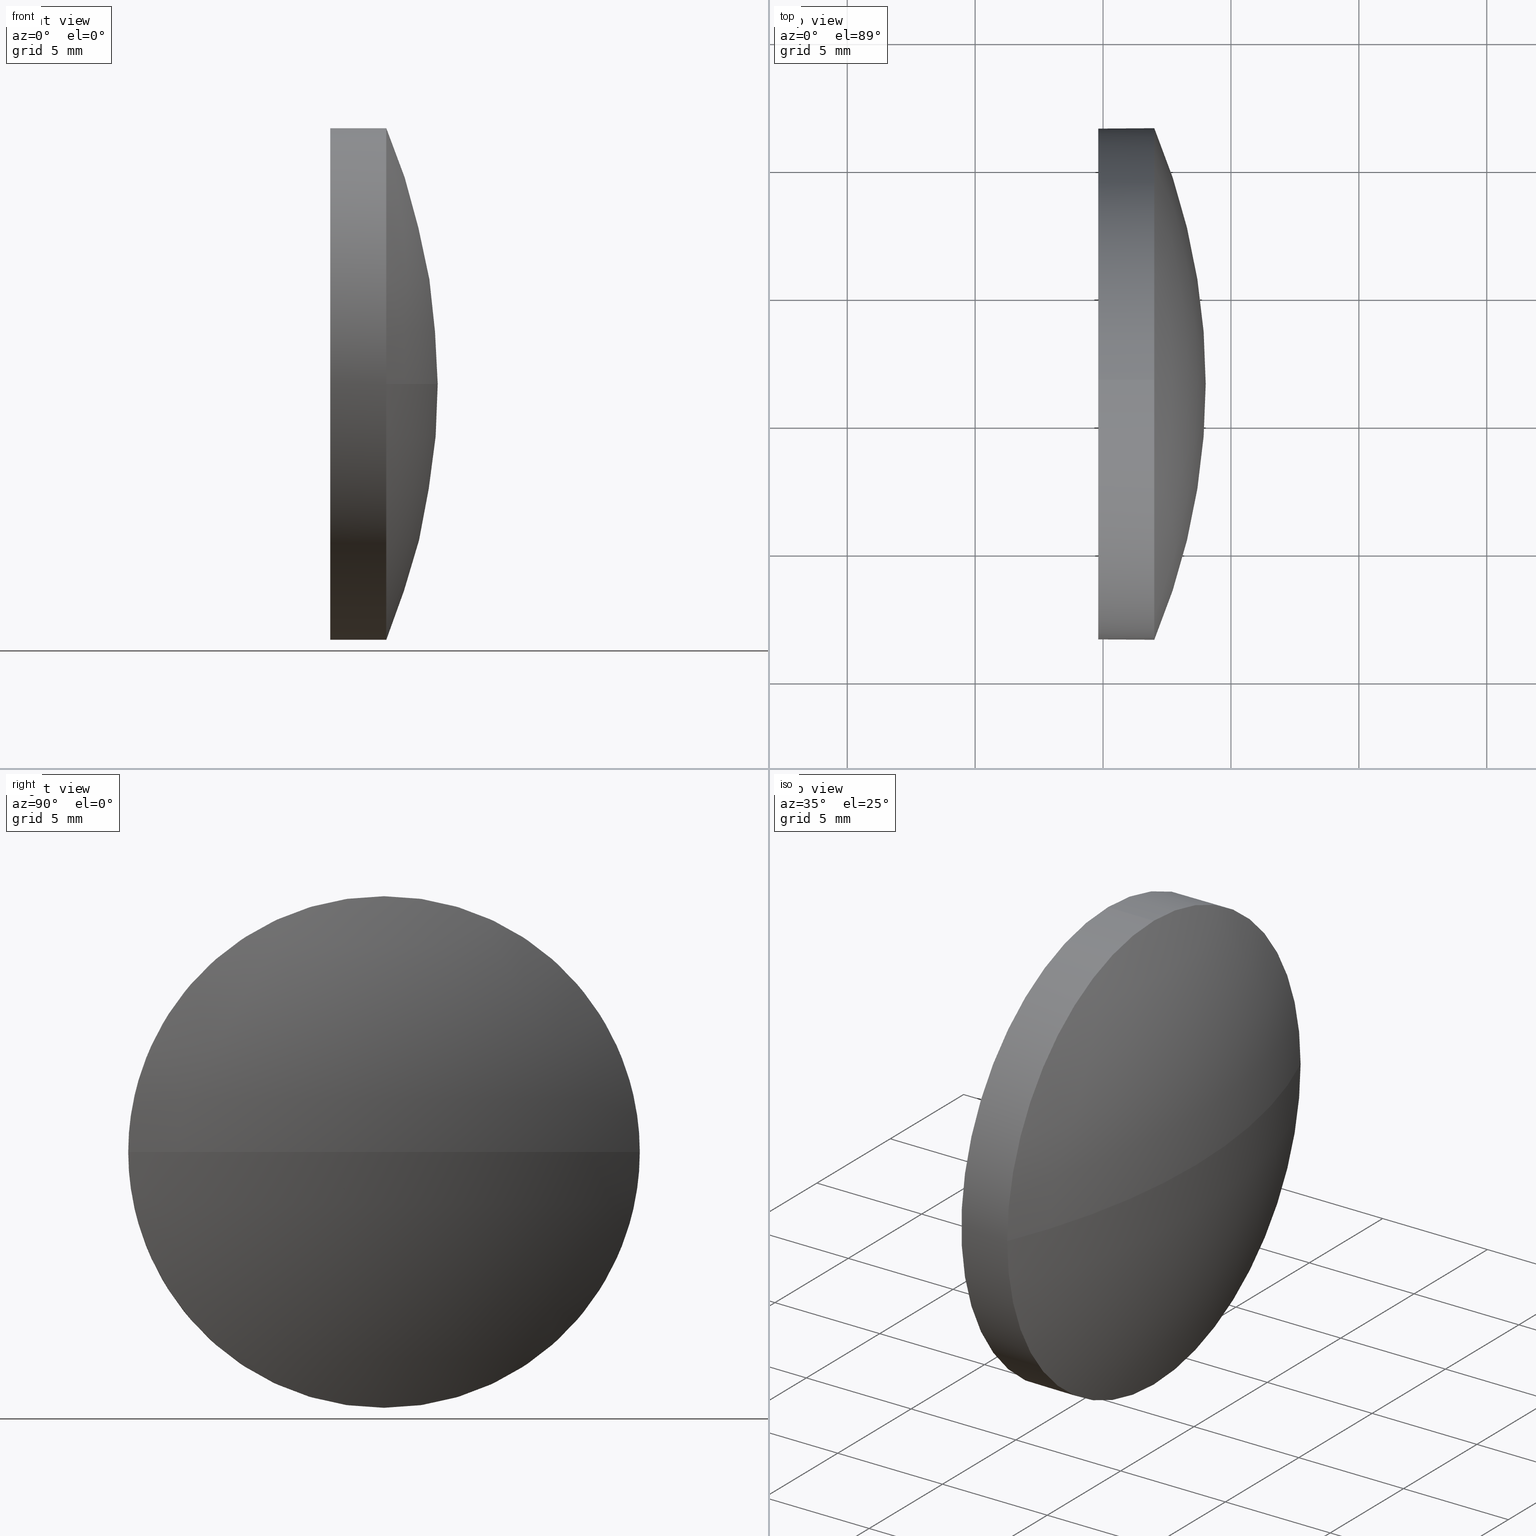
[diagram: canonical four-view strip — front | top / right | iso, engineering-drawing reading convention]
A machine part, canonical four-view strip (front | top / right | iso — engineering-drawing reading convention). The complete STEP part file that produces these views, byte-faithful:
ISO-10303-21;
HEADER;
FILE_DESCRIPTION (( 'STEP AP214' ),
    '1' );
FILE_NAME ('100207.STEP',
    '2019-05-23T06:49:25',
    ( '' ),
    ( '' ),
    'SwSTEP 2.0',
    'SolidWorks 2016',
    '' );
FILE_SCHEMA (( 'AUTOMOTIVE_DESIGN' ));
ENDSEC;

DATA;
#1 = ORIENTED_EDGE ( 'NONE', *, *, #111, .T. ) ;
#2 = CYLINDRICAL_SURFACE ( 'NONE', #41, 9.999999999999998200 ) ;
#3 = AXIS2_PLACEMENT_3D ( 'NONE', #147, #178, #42 ) ;
#4 =( NAMED_UNIT ( * ) PLANE_ANGLE_UNIT ( ) SI_UNIT ( $, .RADIAN. ) );
#5 = EDGE_LOOP ( 'NONE', ( #13, #70, #167, #129 ) ) ;
#6 = PLANE ( 'NONE',  #109 ) ;
#7 = CARTESIAN_POINT ( 'NONE',  ( 396.6972880556904800, 21.54680395939442400, -9.999999999999998200 ) ) ;
#8 = CARTESIAN_POINT ( 'NONE',  ( 407.0037183694385000, 21.54680395939442400, 0.0000000000000000000 ) ) ;
#9 = CARTESIAN_POINT ( 'NONE',  ( 383.1330964788912200, 21.54680395939439600, 0.0000000000000000000 ) ) ;
#10 = SURFACE_STYLE_USAGE ( .BOTH. , #79 ) ;
#11 = AXIS2_PLACEMENT_3D ( 'NONE', #33, #151, #131 ) ;
#12 = COLOUR_RGB ( '',1.000000000000000000, 1.000000000000000000, 1.000000000000000000 ) ;
#13 = ORIENTED_EDGE ( 'NONE', *, *, #148, .F. ) ;
#14 = DIRECTION ( 'NONE',  ( 1.000000000000000000, 0.0000000000000000000, 0.0000000000000000000 ) ) ;
#15 = ORIENTED_EDGE ( 'NONE', *, *, #169, .T. ) ;
#16 = ORIENTED_EDGE ( 'NONE', *, *, #158, .F. ) ;
#17 = CARTESIAN_POINT ( 'NONE',  ( 404.8137183694385000, 21.54680395939442400, 0.0000000000000000000 ) ) ;
#18 = DIRECTION ( 'NONE',  ( -1.000000000000000000, -0.0000000000000000000, -0.0000000000000000000 ) ) ;
#19 = PRODUCT ( '100207', '100207', '', ( #48 ) ) ;
#20 = CARTESIAN_POINT ( 'NONE',  ( 396.6972880556904800, 21.54680395939442400, 9.999999999999998200 ) ) ;
#21 = DIRECTION ( 'NONE',  ( -0.0000000000000000000, 0.0000000000000000000, 1.000000000000000000 ) ) ;
#22 = CARTESIAN_POINT ( 'NONE',  ( 407.0037183694385000, 21.54680395939442400, 9.999999999999998200 ) ) ;
#23 = DIRECTION ( 'NONE',  ( 0.0000000000000000000, 0.0000000000000000000, 1.000000000000000000 ) ) ;
#24 =( NAMED_UNIT ( * ) PLANE_ANGLE_UNIT ( ) SI_UNIT ( $, .RADIAN. ) );
#25 = CYLINDRICAL_SURFACE ( 'NONE', #49, 9.999999999999998200 ) ;
#26 = EDGE_LOOP ( 'NONE', ( #173, #153 ) ) ;
#27 = FACE_OUTER_BOUND ( 'NONE', #43, .T. ) ;
#28 = CIRCLE ( 'NONE', #69, 9.999999999999998200 ) ;
#29 =( GEOMETRIC_REPRESENTATION_CONTEXT ( 3 ) GLOBAL_UNCERTAINTY_ASSIGNED_CONTEXT ( ( #128 ) ) GLOBAL_UNIT_ASSIGNED_CONTEXT ( ( #96, #133, #166 ) ) REPRESENTATION_CONTEXT ( 'NONE', 'WORKASPACE' ) );
#30 = CARTESIAN_POINT ( 'NONE',  ( 409.0137183694384900, 21.54680395939439600, 0.0000000000000000000 ) ) ;
#31 = LINE ( 'NONE', #7, #68 ) ;
#32 = CARTESIAN_POINT ( 'NONE',  ( 0.0000000000000000000, 0.0000000000000000000, 0.0000000000000000000 ) ) ;
#33 = CARTESIAN_POINT ( 'NONE',  ( 383.1330964788912200, 21.54680395939439600, 0.0000000000000000000 ) ) ;
#34 = CIRCLE ( 'NONE', #57, 9.999999999999998200 ) ;
#35 = FILL_AREA_STYLE ('',( #184 ) ) ;
#36 = SPHERICAL_SURFACE ( 'NONE', #97, 25.88062189054729600 ) ;
#37 = ADVANCED_BREP_SHAPE_REPRESENTATION ( '100207', ( #58, #107 ), #150 ) ;
#38 = ADVANCED_FACE ( 'NONE', ( #112 ), #6, .F. ) ;
#39 = SURFACE_STYLE_USAGE ( .BOTH. , #100 ) ;
#40 = DIRECTION ( 'NONE',  ( 0.0000000000000000000, 0.0000000000000000000, -1.000000000000000000 ) ) ;
#41 = AXIS2_PLACEMENT_3D ( 'NONE', #76, #103, #95 ) ;
#42 = DIRECTION ( 'NONE',  ( 0.0000000000000000000, 0.0000000000000000000, 1.000000000000000000 ) ) ;
#43 = EDGE_LOOP ( 'NONE', ( #15, #1, #115, #16, #83 ) ) ;
#44 = DIRECTION ( 'NONE',  ( -1.000000000000000000, -0.0000000000000000000, -0.0000000000000000000 ) ) ;
#45 = DIRECTION ( 'NONE',  ( 0.0000000000000000000, 0.0000000000000000000, 1.000000000000000000 ) ) ;
#46 = VERTEX_POINT ( 'NONE', #30 ) ;
#47 = DIRECTION ( 'NONE',  ( -1.000000000000000000, -0.0000000000000000000, -0.0000000000000000000 ) ) ;
#48 = PRODUCT_CONTEXT ( 'NONE', #63, 'mechanical' ) ;
#49 = AXIS2_PLACEMENT_3D ( 'NONE', #159, #18, #45 ) ;
#50 = CARTESIAN_POINT ( 'NONE',  ( 407.0037183694385000, 21.54680395939442400, 0.0000000000000000000 ) ) ;
#51 = ORIENTED_EDGE ( 'NONE', *, *, #111, .F. ) ;
#52 = AXIS2_PLACEMENT_3D ( 'NONE', #9, #21, #92 ) ;
#53 = VERTEX_POINT ( 'NONE', #55 ) ;
#54 = ORIENTED_EDGE ( 'NONE', *, *, #148, .T. ) ;
#55 = CARTESIAN_POINT ( 'NONE',  ( 407.0037183694385000, 11.54680395939439600, -1.224646799147353700E-015 ) ) ;
#56 = CIRCLE ( 'NONE', #3, 9.999999999999998200 ) ;
#57 = AXIS2_PLACEMENT_3D ( 'NONE', #77, #44, #78 ) ;
#58 = MANIFOLD_SOLID_BREP ( '��ת1', #81 ) ;
#59 = FACE_OUTER_BOUND ( 'NONE', #168, .T. ) ;
#60 = ORIENTED_EDGE ( 'NONE', *, *, #71, .F. ) ;
#61 = DIRECTION ( 'NONE',  ( -1.000000000000000000, -0.0000000000000000000, -0.0000000000000000000 ) ) ;
#62 = CARTESIAN_POINT ( 'NONE',  ( 407.0037183694385000, 21.54680395939442400, 0.0000000000000000000 ) ) ;
#63 = APPLICATION_CONTEXT ( 'automotive_design' ) ;
#64 = CIRCLE ( 'NONE', #52, 25.88062189054729600 ) ;
#65 = DIRECTION ( 'NONE',  ( -1.000000000000000000, -0.0000000000000000000, -0.0000000000000000000 ) ) ;
#66 = VERTEX_POINT ( 'NONE', #124 ) ;
#67 = AXIS2_PLACEMENT_3D ( 'NONE', #50, #65, #165 ) ;
#68 = VECTOR ( 'NONE', #61, 1000.000000000000000 ) ;
#69 = AXIS2_PLACEMENT_3D ( 'NONE', #8, #183, #162 ) ;
#70 = ORIENTED_EDGE ( 'NONE', *, *, #155, .T. ) ;
#71 = EDGE_CURVE ( 'NONE', #82, #123, #56, .T. ) ;
#72 = AXIS2_PLACEMENT_3D ( 'NONE', #104, #132, #90 ) ;
#73 = CARTESIAN_POINT ( 'NONE',  ( 404.8137183694385000, 21.54680395939442400, -9.999999999999998200 ) ) ;
#74 = CIRCLE ( 'NONE', #86, 9.999999999999998200 ) ;
#75 = UNCERTAINTY_MEASURE_WITH_UNIT (LENGTH_MEASURE( 1.000000000000000100E-005 ), #127, 'distance_accuracy_value', 'NONE');
#76 = CARTESIAN_POINT ( 'NONE',  ( 396.6972880556904800, 21.54680395939442400, 0.0000000000000000000 ) ) ;
#77 = CARTESIAN_POINT ( 'NONE',  ( 407.0037183694385000, 21.54680395939442400, 0.0000000000000000000 ) ) ;
#78 = DIRECTION ( 'NONE',  ( 0.0000000000000000000, 0.0000000000000000000, 1.000000000000000000 ) ) ;
#79 = SURFACE_SIDE_STYLE ('',( #181 ) ) ;
#80 = DIRECTION ( 'NONE',  ( 0.0000000000000000000, 1.000000000000000000, 0.0000000000000000000 ) ) ;
#81 = CLOSED_SHELL ( 'NONE', ( #99, #110, #174, #143, #38 ) ) ;
#82 = VERTEX_POINT ( 'NONE', #73 ) ;
#83 = ORIENTED_EDGE ( 'NONE', *, *, #126, .T. ) ;
#84 = PRODUCT_DEFINITION_SHAPE ( 'NONE', 'NONE',  #113 ) ;
#85 = SHAPE_DEFINITION_REPRESENTATION ( #84, #37 ) ;
#86 = AXIS2_PLACEMENT_3D ( 'NONE', #62, #47, #152 ) ;
#87 = STYLED_ITEM ( 'NONE', ( #139 ), #58 ) ;
#88 = EDGE_LOOP ( 'NONE', ( #108, #54, #89, #161 ) ) ;
#89 = ORIENTED_EDGE ( 'NONE', *, *, #126, .F. ) ;
#90 = DIRECTION ( 'NONE',  ( 0.0000000000000000000, 1.000000000000000000, 0.0000000000000000000 ) ) ;
#91 = AXIS2_PLACEMENT_3D ( 'NONE', #17, #114, #130 ) ;
#92 = DIRECTION ( 'NONE',  ( 1.000000000000000000, 0.0000000000000000000, 0.0000000000000000000 ) ) ;
#93 = PRESENTATION_STYLE_ASSIGNMENT (( #10 ) ) ;
#94 = DIRECTION ( 'NONE',  ( 1.000000000000000000, 0.0000000000000000000, 0.0000000000000000000 ) ) ;
#95 = DIRECTION ( 'NONE',  ( 0.0000000000000000000, 0.0000000000000000000, 1.000000000000000000 ) ) ;
#96 =( LENGTH_UNIT ( ) NAMED_UNIT ( * ) SI_UNIT ( .MILLI., .METRE. ) );
#97 = AXIS2_PLACEMENT_3D ( 'NONE', #163, #106, #80 ) ;
#98 = VERTEX_POINT ( 'NONE', #22 ) ;
#99 = ADVANCED_FACE ( 'NONE', ( #27 ), #25, .T. ) ;
#100 = SURFACE_SIDE_STYLE ('',( #176 ) ) ;
#101 = VECTOR ( 'NONE', #116, 1000.000000000000000 ) ;
#102 = CARTESIAN_POINT ( 'NONE',  ( 404.8137183694385000, 21.54680395939442400, 0.0000000000000000000 ) ) ;
#103 = DIRECTION ( 'NONE',  ( -1.000000000000000000, -0.0000000000000000000, -0.0000000000000000000 ) ) ;
#104 = CARTESIAN_POINT ( 'NONE',  ( 383.1330964788912200, 21.54680395939439600, 0.0000000000000000000 ) ) ;
#105 = FACE_OUTER_BOUND ( 'NONE', #5, .T. ) ;
#106 = DIRECTION ( 'NONE',  ( -0.0000000000000000000, 0.0000000000000000000, -1.000000000000000000 ) ) ;
#107 = AXIS2_PLACEMENT_3D ( 'NONE', #32, #23, #94 ) ;
#108 = ORIENTED_EDGE ( 'NONE', *, *, #155, .F. ) ;
#109 = AXIS2_PLACEMENT_3D ( 'NONE', #102, #14, #40 ) ;
#110 = ADVANCED_FACE ( 'NONE', ( #105 ), #144, .T. ) ;
#111 = EDGE_CURVE ( 'NONE', #142, #82, #31, .T. ) ;
#112 = FACE_OUTER_BOUND ( 'NONE', #26, .T. ) ;
#113 = PRODUCT_DEFINITION ( 'δ֪', '', #121, #171 ) ;
#114 = DIRECTION ( 'NONE',  ( -1.000000000000000000, -0.0000000000000000000, -0.0000000000000000000 ) ) ;
#115 = ORIENTED_EDGE ( 'NONE', *, *, #141, .F. ) ;
#116 = DIRECTION ( 'NONE',  ( -1.000000000000000000, -0.0000000000000000000, -0.0000000000000000000 ) ) ;
#117 =( NAMED_UNIT ( * ) SI_UNIT ( $, .STERADIAN. ) SOLID_ANGLE_UNIT ( ) );
#118 = APPLICATION_PROTOCOL_DEFINITION ( 'draft international standard', 'automotive_design', 1998, #135 ) ;
#119 = MECHANICAL_DESIGN_GEOMETRIC_PRESENTATION_REPRESENTATION (  '', ( #138 ), #29 ) ;
#120 = ORIENTED_EDGE ( 'NONE', *, *, #122, .T. ) ;
#121 = PRODUCT_DEFINITION_FORMATION_WITH_SPECIFIED_SOURCE ( '�κ�', '', #19, .NOT_KNOWN. ) ;
#122 = EDGE_CURVE ( 'NONE', #142, #53, #34, .T. ) ;
#123 = VERTEX_POINT ( 'NONE', #180 ) ;
#124 = CARTESIAN_POINT ( 'NONE',  ( 407.0037183694385000, 31.54680395939442400, 0.0000000000000000000 ) ) ;
#125 = FILL_AREA_STYLE ('',( #175 ) ) ;
#126 = EDGE_CURVE ( 'NONE', #98, #66, #28, .T. ) ;
#127 =( LENGTH_UNIT ( ) NAMED_UNIT ( * ) SI_UNIT ( .MILLI., .METRE. ) );
#128 = UNCERTAINTY_MEASURE_WITH_UNIT (LENGTH_MEASURE( 1.000000000000000100E-005 ), #96, 'distance_accuracy_value', 'NONE');
#129 = ORIENTED_EDGE ( 'NONE', *, *, #169, .F. ) ;
#130 = DIRECTION ( 'NONE',  ( 0.0000000000000000000, 0.0000000000000000000, 1.000000000000000000 ) ) ;
#131 = DIRECTION ( 'NONE',  ( 0.0000000000000000000, 1.000000000000000000, 1.224646799147353000E-016 ) ) ;
#132 = DIRECTION ( 'NONE',  ( -0.0000000000000000000, 0.0000000000000000000, -1.000000000000000000 ) ) ;
#133 =( NAMED_UNIT ( * ) PLANE_ANGLE_UNIT ( ) SI_UNIT ( $, .RADIAN. ) );
#134 = CIRCLE ( 'NONE', #67, 9.999999999999998200 ) ;
#135 = APPLICATION_CONTEXT ( 'automotive_design' ) ;
#136 = ORIENTED_EDGE ( 'NONE', *, *, #172, .T. ) ;
#137 = PRESENTATION_LAYER_ASSIGNMENT (  '', '', ( #87 ) ) ;
#138 = STYLED_ITEM ( 'NONE', ( #93 ), #37 ) ;
#139 = PRESENTATION_STYLE_ASSIGNMENT (( #39 ) ) ;
#140 = CIRCLE ( 'NONE', #91, 9.999999999999998200 ) ;
#141 = EDGE_CURVE ( 'NONE', #123, #82, #140, .T. ) ;
#142 = VERTEX_POINT ( 'NONE', #149 ) ;
#143 = ADVANCED_FACE ( 'NONE', ( #59 ), #2, .T. ) ;
#144 = SPHERICAL_SURFACE ( 'NONE', #72, 25.88062189054729600 ) ;
#145 = PRODUCT_RELATED_PRODUCT_CATEGORY ( 'part', '', ( #19 ) ) ;
#146 = FACE_OUTER_BOUND ( 'NONE', #88, .T. ) ;
#147 = CARTESIAN_POINT ( 'NONE',  ( 404.8137183694385000, 21.54680395939442400, 0.0000000000000000000 ) ) ;
#148 = EDGE_CURVE ( 'NONE', #46, #66, #64, .T. ) ;
#149 = CARTESIAN_POINT ( 'NONE',  ( 407.0037183694385000, 21.54680395939442400, -9.999999999999998200 ) ) ;
#150 =( GEOMETRIC_REPRESENTATION_CONTEXT ( 3 ) GLOBAL_UNCERTAINTY_ASSIGNED_CONTEXT ( ( #186 ) ) GLOBAL_UNIT_ASSIGNED_CONTEXT ( ( #154, #24, #117 ) ) REPRESENTATION_CONTEXT ( 'NONE', 'WORKASPACE' ) );
#151 = DIRECTION ( 'NONE',  ( 0.0000000000000000000, 1.224646799147353200E-016, -1.000000000000000000 ) ) ;
#152 = DIRECTION ( 'NONE',  ( 0.0000000000000000000, 0.0000000000000000000, 1.000000000000000000 ) ) ;
#153 = ORIENTED_EDGE ( 'NONE', *, *, #71, .T. ) ;
#154 =( LENGTH_UNIT ( ) NAMED_UNIT ( * ) SI_UNIT ( .MILLI., .METRE. ) );
#155 = EDGE_CURVE ( 'NONE', #46, #53, #177, .T. ) ;
#156 = MECHANICAL_DESIGN_GEOMETRIC_PRESENTATION_REPRESENTATION (  '', ( #87 ), #179 ) ;
#157 = PRESENTATION_LAYER_ASSIGNMENT (  '', '', ( #138 ) ) ;
#158 = EDGE_CURVE ( 'NONE', #98, #123, #185, .T. ) ;
#159 = CARTESIAN_POINT ( 'NONE',  ( 396.6972880556904800, 21.54680395939442400, 0.0000000000000000000 ) ) ;
#160 = ORIENTED_EDGE ( 'NONE', *, *, #158, .T. ) ;
#161 = ORIENTED_EDGE ( 'NONE', *, *, #172, .F. ) ;
#162 = DIRECTION ( 'NONE',  ( 0.0000000000000000000, 0.0000000000000000000, 1.000000000000000000 ) ) ;
#163 = CARTESIAN_POINT ( 'NONE',  ( 383.1330964788912200, 21.54680395939439600, 0.0000000000000000000 ) ) ;
#164 = APPLICATION_PROTOCOL_DEFINITION ( 'draft international standard', 'automotive_design', 1998, #63 ) ;
#165 = DIRECTION ( 'NONE',  ( 0.0000000000000000000, 0.0000000000000000000, 1.000000000000000000 ) ) ;
#166 =( NAMED_UNIT ( * ) SI_UNIT ( $, .STERADIAN. ) SOLID_ANGLE_UNIT ( ) );
#167 = ORIENTED_EDGE ( 'NONE', *, *, #122, .F. ) ;
#168 = EDGE_LOOP ( 'NONE', ( #51, #120, #136, #160, #60 ) ) ;
#169 = EDGE_CURVE ( 'NONE', #66, #142, #74, .T. ) ;
#170 = COLOUR_RGB ( '',1.000000000000000000, 1.000000000000000000, 1.000000000000000000 ) ;
#171 = PRODUCT_DEFINITION_CONTEXT ( 'detailed design', #135, 'design' ) ;
#172 = EDGE_CURVE ( 'NONE', #53, #98, #134, .T. ) ;
#173 = ORIENTED_EDGE ( 'NONE', *, *, #141, .T. ) ;
#174 = ADVANCED_FACE ( 'NONE', ( #146 ), #36, .T. ) ;
#175 = FILL_AREA_STYLE_COLOUR ( '', #170 ) ;
#176 = SURFACE_STYLE_FILL_AREA ( #125 ) ;
#177 = CIRCLE ( 'NONE', #11, 25.88062189054730000 ) ;
#178 = DIRECTION ( 'NONE',  ( -1.000000000000000000, -0.0000000000000000000, -0.0000000000000000000 ) ) ;
#179 =( GEOMETRIC_REPRESENTATION_CONTEXT ( 3 ) GLOBAL_UNCERTAINTY_ASSIGNED_CONTEXT ( ( #75 ) ) GLOBAL_UNIT_ASSIGNED_CONTEXT ( ( #127, #4, #182 ) ) REPRESENTATION_CONTEXT ( 'NONE', 'WORKASPACE' ) );
#180 = CARTESIAN_POINT ( 'NONE',  ( 404.8137183694385000, 21.54680395939442400, 9.999999999999998200 ) ) ;
#181 = SURFACE_STYLE_FILL_AREA ( #35 ) ;
#182 =( NAMED_UNIT ( * ) SI_UNIT ( $, .STERADIAN. ) SOLID_ANGLE_UNIT ( ) );
#183 = DIRECTION ( 'NONE',  ( -1.000000000000000000, -0.0000000000000000000, -0.0000000000000000000 ) ) ;
#184 = FILL_AREA_STYLE_COLOUR ( '', #12 ) ;
#185 = LINE ( 'NONE', #20, #101 ) ;
#186 = UNCERTAINTY_MEASURE_WITH_UNIT (LENGTH_MEASURE( 1.000000000000000100E-005 ), #154, 'distance_accuracy_value', 'NONE');
ENDSEC;
END-ISO-10303-21;
